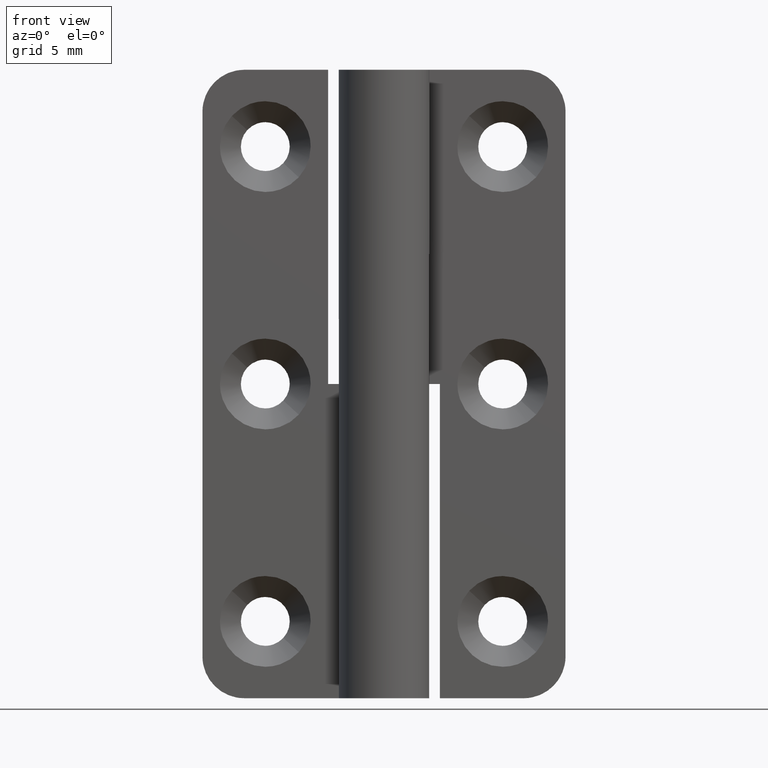
[diagram: clean part render]
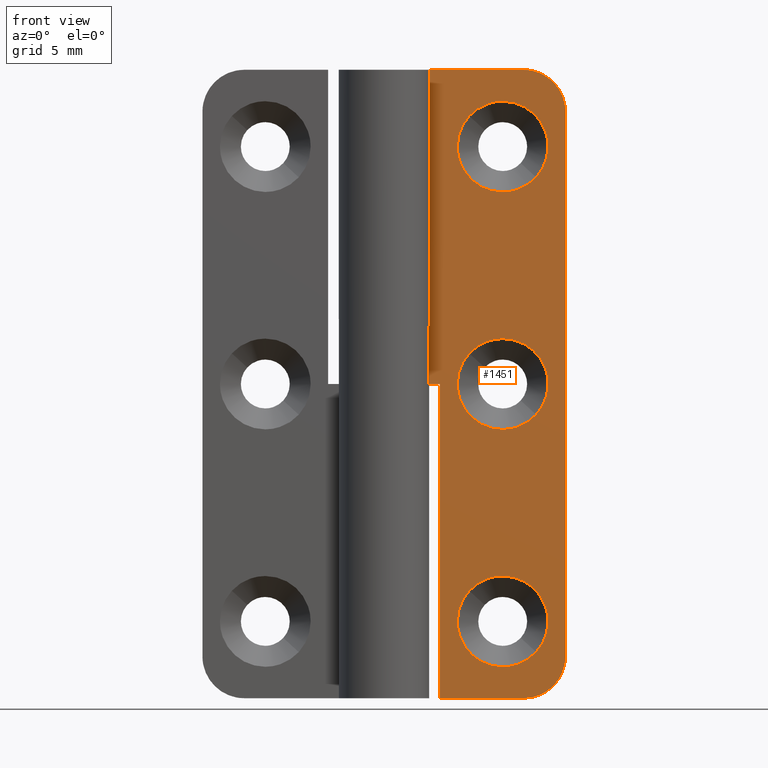
[diagram: same view with one face highlighted and labeled with its STEP entity id]
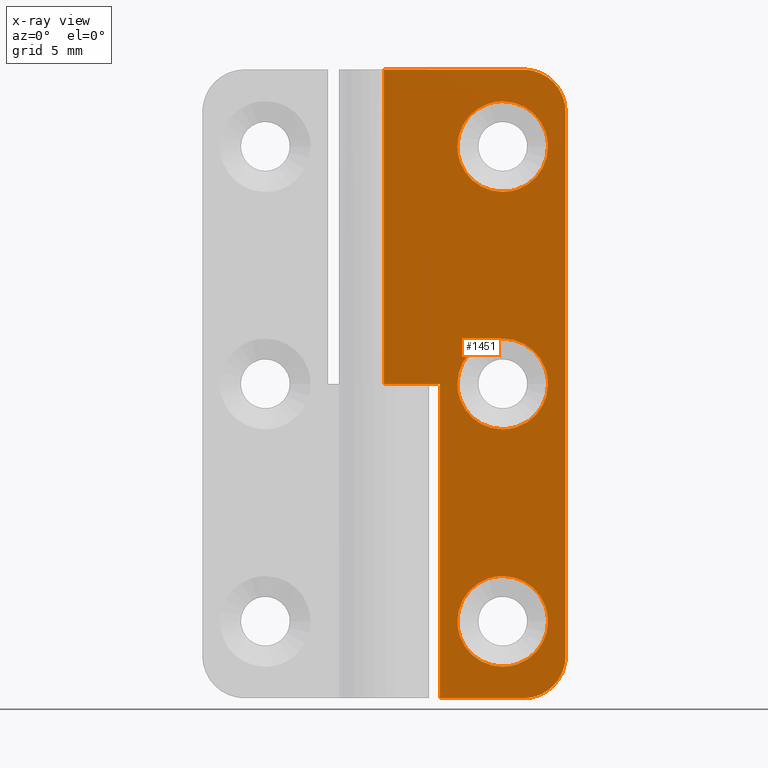
[diagram: x-ray of the same camera — body ghosted, the highlighted face saturated]
A machine part, front view. The second image highlights one B-rep face of the part: STEP entity #1451.
The next image is the same camera in x-ray: the body ghosted, the highlighted face saturated — about 0% of this face is hidden behind the body in this view.
In plain terms, the highlighted face is a freeform B-spline surface patch.
Its self-contained STEP definition (entity closure, byte-faithful):
#383=CARTESIAN_POINT('',(5.250000000000024,1.750000000000000,39.500014390402910));
#384=VERTEX_POINT('',#383);
#385=CARTESIAN_POINT('',(6.103848547643068,1.749999951437242,41.695682272990290));
#386=VERTEX_POINT('',#385);
#387=CARTESIAN_POINT('',(5.250000000000024,1.750000000000000,39.500014390402910));
#388=CARTESIAN_POINT('',(5.249905263666113,1.749999993612510,39.788812092109779));
#389=CARTESIAN_POINT('',(5.314035780303749,1.749999983060951,40.265879624010758));
#390=CARTESIAN_POINT('',(5.593272470421466,1.749999966323279,41.022639770490109));
#391=CARTESIAN_POINT('',(5.883160129097754,1.749999956758604,41.455087896420970));
#392=CARTESIAN_POINT('',(6.103848547643068,1.749999951437242,41.695682272990290));
#393=B_SPLINE_CURVE_WITH_KNOTS('',3,(#387,#388,#389,#390,#391,#392),.UNSPECIFIED.,.F.,.U.,(4,1,1,4),(0.000000011508423,0.866367289098910,1.431377033139097,2.410749185026033),.UNSPECIFIED.);
#394=EDGE_CURVE('',#384,#386,#393,.T.);
#396=CARTESIAN_POINT('',(8.500000000000000,1.750000000000000,36.250013999999950));
#397=VERTEX_POINT('',#396);
#398=CARTESIAN_POINT('',(8.500000000000000,1.750000000000000,36.250013999999950));
#399=CARTESIAN_POINT('',(8.154314993950230,1.750000000000003,36.249802802114502));
#400=CARTESIAN_POINT('',(7.582790762308839,1.749999999999997,36.342130937134158));
#401=CARTESIAN_POINT('',(6.839389454818980,1.750000000000004,36.677147649660938));
#402=CARTESIAN_POINT('',(6.302210389102762,1.749999999999996,37.075540367421432));
#403=CARTESIAN_POINT('',(5.901511765844712,1.750000000000003,37.523192754402793));
#404=CARTESIAN_POINT('',(5.594844033654593,1.749999999999988,38.007472634926863));
#405=CARTESIAN_POINT('',(5.328968361964323,1.750000000000025,38.649233100464173));
#406=CARTESIAN_POINT('',(5.249854812960429,1.749999999999966,39.180930566027151));
#407=CARTESIAN_POINT('',(5.250000000000024,1.750000000000000,39.500014390402910));
#408=B_SPLINE_CURVE_WITH_KNOTS('',3,(#398,#399,#400,#401,#402,#403,#404,#405,#406,#407),.UNSPECIFIED.,.F.,.U.,(4,1,1,1,1,1,1,4),(0.000000048362739,1.036973805816351,1.715003788600368,2.432924922719289,3.031159580038018,3.509768746287797,4.147911748582389,5.105120314384822),.UNSPECIFIED.);
#409=EDGE_CURVE('',#397,#384,#408,.T.);
#411=CARTESIAN_POINT('',(10.896151452356939,1.749999951437239,37.304345727009597));
#412=VERTEX_POINT('',#411);
#413=CARTESIAN_POINT('',(10.896151452356939,1.749999951437239,37.304345727009597));
#414=CARTESIAN_POINT('',(10.725537181967020,1.749999954895075,37.118072944584227));
#415=CARTESIAN_POINT('',(10.351263035142541,1.749999962480485,36.794887488817913));
#416=CARTESIAN_POINT('',(9.776958385236968,1.749999974119905,36.491666757727693));
#417=CARTESIAN_POINT('',(9.159533052241700,1.749999986633253,36.297716479754477));
#418=CARTESIAN_POINT('',(8.752601685066400,1.749999994880526,36.249955528736969));
#419=CARTESIAN_POINT('',(8.500000000000000,1.750000000000000,36.250013999999950));
#420=B_SPLINE_CURVE_WITH_KNOTS('',3,(#413,#414,#415,#416,#417,#418,#419),.UNSPECIFIED.,.F.,.U.,(4,1,1,1,4),(0.000000014684428,0.757792213932789,1.473475589363535,1.936578730684353,2.694370929932206),.UNSPECIFIED.);
#421=EDGE_CURVE('',#412,#397,#420,.T.);
#492=CARTESIAN_POINT('',(8.500000000000000,1.750000000000000,42.750013999999958));
#493=VERTEX_POINT('',#492);
#494=CARTESIAN_POINT('',(6.103848547643068,1.749999951437242,41.695682272990290));
#495=CARTESIAN_POINT('',(6.274460559458166,1.749999954895033,41.881959094806312));
#496=CARTESIAN_POINT('',(6.584592682496578,1.749999961180475,42.149713750348560));
#497=CARTESIAN_POINT('',(7.144714322024778,1.749999972532456,42.473896396690783));
#498=CARTESIAN_POINT('',(7.756266616135769,1.749999984926757,42.692465142899593));
#499=CARTESIAN_POINT('',(8.247399882205157,1.749999994880558,42.750068068936720));
#500=CARTESIAN_POINT('',(8.500000000000000,1.750000000000000,42.750013999999958));
#501=B_SPLINE_CURVE_WITH_KNOTS('',3,(#494,#495,#496,#497,#498,#499,#500),.UNSPECIFIED.,.F.,.U.,(4,1,1,1,4),(0.000000014688920,0.757792213935847,1.220895355267033,1.936578730685173,2.694370929932166),.UNSPECIFIED.);
#502=EDGE_CURVE('',#386,#493,#501,.T.);
#540=CARTESIAN_POINT('',(11.749999999999980,1.750000000000000,39.500013609596962));
#541=VERTEX_POINT('',#540);
#542=CARTESIAN_POINT('',(11.749999999999980,1.750000000000000,39.500013609596962));
#543=CARTESIAN_POINT('',(11.750033103270811,1.749999994723542,39.261449067646048));
#544=CARTESIAN_POINT('',(11.697242185613000,1.749999984171074,38.784340359736547));
#545=CARTESIAN_POINT('',(11.435058978179740,1.749999967256163,38.019567054463401));
#546=CARTESIAN_POINT('',(11.116824862300330,1.749999956758670,37.544943144998648));
#547=CARTESIAN_POINT('',(10.896151452356939,1.749999951437239,37.304345727009597));
#548=B_SPLINE_CURVE_WITH_KNOTS('',3,(#542,#543,#544,#545,#546,#547),.UNSPECIFIED.,.F.,.U.,(4,1,1,4),(0.000000011508615,0.715692780236679,1.431377033139402,2.410749185025999),.UNSPECIFIED.);
#549=EDGE_CURVE('',#541,#412,#548,.T.);
#551=CARTESIAN_POINT('',(8.500000000000000,1.750000000000000,42.750013999999958));
#552=CARTESIAN_POINT('',(8.765894396079290,1.750000000000000,42.750077312279480));
#553=CARTESIAN_POINT('',(9.284355081210899,1.750000000000004,42.686038327872538));
#554=CARTESIAN_POINT('',(9.897711352233992,1.749999999999998,42.453761234738543));
#555=CARTESIAN_POINT('',(10.411806302017480,1.750000000000002,42.145587399117687));
#556=CARTESIAN_POINT('',(10.790004994778460,1.750000000000000,41.827373326174182));
#557=CARTESIAN_POINT('',(11.127000597385940,1.749999999999999,41.431787064065503));
#558=CARTESIAN_POINT('',(11.405158276054930,1.750000000000007,40.992558442646782));
#559=CARTESIAN_POINT('',(11.671038272380720,1.750000000000004,40.350794606531487));
#560=CARTESIAN_POINT('',(11.750137504108620,1.749999999999989,39.819097082843420));
#561=CARTESIAN_POINT('',(11.749999999999980,1.750000000000000,39.500013609596962));
#562=B_SPLINE_CURVE_WITH_KNOTS('',3,(#551,#552,#553,#554,#555,#556,#557,#558,#559,#560,#561),.UNSPECIFIED.,.F.,.U.,(4,1,1,1,1,1,1,1,4),(0.000000048371061,0.797673212210031,1.555468238086133,1.954315122686869,2.592429593743864,3.031159580040696,3.509768746289165,4.147911748582479,5.105120314384816),.UNSPECIFIED.);
#563=EDGE_CURVE('',#493,#541,#562,.T.);
#586=CARTESIAN_POINT('',(5.250000000000025,1.750000000000000,22.500007390402960));
#587=VERTEX_POINT('',#586);
#588=CARTESIAN_POINT('',(6.103848547643072,1.749999951437243,24.695675272990339));
#589=VERTEX_POINT('',#588);
#590=CARTESIAN_POINT('',(5.250000000000025,1.750000000000000,22.500007390402960));
#591=CARTESIAN_POINT('',(5.249794501681098,1.749999992223433,22.851609683235090));
#592=CARTESIAN_POINT('',(5.328182860309387,1.749999981673853,23.328587171541891));
#593=CARTESIAN_POINT('',(5.628636290391573,1.749999965156872,24.075369983172131));
#594=CARTESIAN_POINT('',(5.883153250300435,1.749999956758517,24.455084399151630));
#595=CARTESIAN_POINT('',(6.103848547643072,1.749999951437243,24.695675272990339));
#596=B_SPLINE_CURVE_WITH_KNOTS('',3,(#590,#591,#592,#593,#594,#595),.UNSPECIFIED.,.F.,.U.,(4,1,1,4),(0.000000011505886,1.054705839757154,1.431377033138864,2.410749185026023),.UNSPECIFIED.);
#597=EDGE_CURVE('',#587,#589,#596,.T.);
#599=CARTESIAN_POINT('',(8.500000000000000,1.750000000000000,19.250007000000000));
#600=VERTEX_POINT('',#599);
#601=CARTESIAN_POINT('',(8.500000000000000,1.750000000000000,19.250007000000000));
#602=CARTESIAN_POINT('',(8.287288740189421,1.750000000000001,19.249988559959050));
#603=CARTESIAN_POINT('',(7.835276272184781,1.749999999999998,19.294514636219649));
#604=CARTESIAN_POINT('',(7.210464059604127,1.750000000000003,19.492446936790820));
#605=CARTESIAN_POINT('',(6.685925014510925,1.749999999999995,19.785396309692871));
#606=CARTESIAN_POINT('',(6.227977795016376,1.750000000000001,20.151900008953270));
#607=CARTESIAN_POINT('',(5.885067283388882,1.750000000000001,20.544533935283621));
#608=CARTESIAN_POINT('',(5.584615141647876,1.749999999999998,21.032145409243579));
#609=CARTESIAN_POINT('',(5.328976896565504,1.750000000000000,21.649229891063140));
#610=CARTESIAN_POINT('',(5.249850708876859,1.750000000000003,22.180921852404921));
#611=CARTESIAN_POINT('',(5.250000000000025,1.750000000000000,22.500007390402960));
#612=B_SPLINE_CURVE_WITH_KNOTS('',3,(#601,#602,#603,#604,#605,#606,#607,#608,#609,#610,#611),.UNSPECIFIED.,.F.,.U.,(4,1,1,1,1,1,1,1,4),(0.000000048368444,0.638137660557733,1.356049108615419,1.954315122685200,2.432924922722224,3.110921112327103,3.509768746288751,4.147911748582246,5.105120314384839),.UNSPECIFIED.);
#613=EDGE_CURVE('',#600,#587,#612,.T.);
#615=CARTESIAN_POINT('',(10.896151452356939,1.749999951437237,20.304338727009650));
#616=VERTEX_POINT('',#615);
#617=CARTESIAN_POINT('',(10.896151452356939,1.749999951437237,20.304338727009650));
#618=CARTESIAN_POINT('',(10.725540651817630,1.749999954895005,20.118057917786150));
#619=CARTESIAN_POINT('',(10.436794385137530,1.749999960747019,19.868781143102421));
#620=CARTESIAN_POINT('',(9.941748155985458,1.749999970780114,19.573664843124462));
#621=CARTESIAN_POINT('',(9.341911979944436,1.749999982936985,19.328010202026249));
#622=CARTESIAN_POINT('',(8.822779340415872,1.749999993458238,19.249864965780919));
#623=CARTESIAN_POINT('',(8.500000000000000,1.750000000000000,19.250007000000000));
#624=B_SPLINE_CURVE_WITH_KNOTS('',3,(#617,#618,#619,#620,#621,#622,#623),.UNSPECIFIED.,.F.,.U.,(4,1,1,1,4),(0.000000014685558,0.757792213933224,1.136690110805183,1.726080500663979,2.694370929932196),.UNSPECIFIED.);
#625=EDGE_CURVE('',#616,#600,#624,.T.);
#696=CARTESIAN_POINT('',(8.500000000000000,1.750000000000000,25.750007000000000));
#697=VERTEX_POINT('',#696);
#698=CARTESIAN_POINT('',(6.103848547643072,1.749999951437243,24.695675272990339));
#699=CARTESIAN_POINT('',(6.274459108041489,1.749999954895005,24.881955409169290));
#700=CARTESIAN_POINT('',(6.563205146995663,1.749999960747012,25.131234386860449));
#701=CARTESIAN_POINT('',(7.058252869797977,1.749999970780141,25.426346636519352));
#702=CARTESIAN_POINT('',(7.658086388711195,1.749999982936942,25.672007471919791));
#703=CARTESIAN_POINT('',(8.177221253750471,1.749999993458253,25.750147674255839));
#704=CARTESIAN_POINT('',(8.500000000000000,1.750000000000000,25.750007000000000));
#705=B_SPLINE_CURVE_WITH_KNOTS('',3,(#698,#699,#700,#701,#702,#703,#704),.UNSPECIFIED.,.F.,.U.,(4,1,1,1,4),(0.000000014686188,0.757792213933682,1.136690110805521,1.726080500664157,2.694370929932189),.UNSPECIFIED.);
#706=EDGE_CURVE('',#589,#697,#705,.T.);
#745=CARTESIAN_POINT('',(11.749999999999980,1.750000000000000,22.500006609597001));
#746=VERTEX_POINT('',#745);
#747=CARTESIAN_POINT('',(11.749999999999980,1.750000000000000,22.500006609597001));
#748=CARTESIAN_POINT('',(11.750022005110489,1.749999994723641,22.261446586152420));
#749=CARTESIAN_POINT('',(11.693140407737641,1.749999983337431,21.746641428092879));
#750=CARTESIAN_POINT('',(11.417053159735490,1.749999966492202,20.985020216165921));
#751=CARTESIAN_POINT('',(11.091330134671450,1.749999956145148,20.517196809618572));
#752=CARTESIAN_POINT('',(10.896151452356939,1.749999951437237,20.304338727009650));
#753=B_SPLINE_CURVE_WITH_KNOTS('',3,(#747,#748,#749,#750,#751,#752),.UNSPECIFIED.,.F.,.U.,(4,1,1,4),(0.000000011505733,0.715692780235343,1.544381907424792,2.410749185025989),.UNSPECIFIED.);
#754=EDGE_CURVE('',#746,#616,#753,.T.);
#756=CARTESIAN_POINT('',(8.500000000000000,1.750000000000000,25.750007000000000));
#757=CARTESIAN_POINT('',(8.712713438656845,1.749999999999997,25.750035501218228));
#758=CARTESIAN_POINT('',(9.084947374917867,1.750000000000010,25.713324766477609));
#759=CARTESIAN_POINT('',(9.586008106476220,1.749999999999990,25.574660179935218));
#760=CARTESIAN_POINT('',(10.037956930616970,1.750000000000007,25.377642043071940));
#761=CARTESIAN_POINT('',(10.432526932497399,1.749999999999995,25.127779474592380));
#762=CARTESIAN_POINT('',(10.825866559139831,1.750000000000006,24.788480406790480));
#763=CARTESIAN_POINT('',(11.163546419305151,1.749999999999999,24.392148229880078));
#764=CARTESIAN_POINT('',(11.439005908516560,1.750000000000000,23.919471322619930));
#765=CARTESIAN_POINT('',(11.678922724685981,1.749999999999998,23.297604819409688));
#766=CARTESIAN_POINT('',(11.750152379400300,1.750000000000001,22.819095270116929));
#767=CARTESIAN_POINT('',(11.749999999999980,1.750000000000000,22.500006609597001));
#768=B_SPLINE_CURVE_WITH_KNOTS('',3,(#756,#757,#758,#759,#760,#761,#762,#763,#764,#765,#766,#767),.UNSPECIFIED.,.F.,.U.,(4,1,1,1,1,1,1,1,1,4),(0.000000048364843,0.638137660554750,1.116744200774647,1.555468238082089,2.113852417583560,2.512690467800751,3.110921112326673,3.669304834590391,4.147911748582351,5.105120314384865),.UNSPECIFIED.);
#769=EDGE_CURVE('',#697,#746,#768,.T.);
#792=CARTESIAN_POINT('',(5.250000000000024,1.750000000000000,5.500000390402959));
#793=VERTEX_POINT('',#792);
#794=CARTESIAN_POINT('',(6.103848547643072,1.749999951437244,7.695668272990342));
#795=VERTEX_POINT('',#794);
#796=CARTESIAN_POINT('',(5.250000000000024,1.750000000000000,5.500000390402959));
#797=CARTESIAN_POINT('',(5.249987843241259,1.749999996112112,5.675783554459459));
#798=CARTESIAN_POINT('',(5.279609109245870,1.749999988058641,6.039905109088721));
#799=CARTESIAN_POINT('',(5.397719604898684,1.749999977793235,6.504034832721891));
#800=CARTESIAN_POINT('',(5.635693995382362,1.749999964923465,7.085915623063779));
#801=CARTESIAN_POINT('',(5.883155592235312,1.749999956758574,7.455075237702156));
#802=CARTESIAN_POINT('',(6.103848547643072,1.749999951437244,7.695668272990342));
#803=B_SPLINE_CURVE_WITH_KNOTS('',3,(#796,#797,#798,#799,#800,#801,#802),.UNSPECIFIED.,.F.,.U.,(4,1,1,1,4),(0.000000011506514,0.527351144336262,1.092375014252724,1.431377033139071,2.410749185026028),.UNSPECIFIED.);
#804=EDGE_CURVE('',#793,#795,#803,.T.);
#806=CARTESIAN_POINT('',(8.500000000000000,1.750000000000000,2.250000000000000));
#807=VERTEX_POINT('',#806);
#808=CARTESIAN_POINT('',(8.500000000000000,1.750000000000000,2.250000000000000));
#809=CARTESIAN_POINT('',(8.180908962842365,1.749999999999997,2.249844567684519));
#810=CARTESIAN_POINT('',(7.689116331211935,1.750000000000002,2.323066727933450));
#811=CARTESIAN_POINT('',(7.006348256103308,1.749999999999998,2.591250561371122));
#812=CARTESIAN_POINT('',(6.543044924835734,1.750000000000003,2.884643294229591));
#813=CARTESIAN_POINT('',(6.098929988348662,1.749999999999998,3.287169112393762));
#814=CARTESIAN_POINT('',(5.767402481361777,1.750000000000002,3.706644459377383));
#815=CARTESIAN_POINT('',(5.462857392617767,1.750000000000000,4.284878841088996));
#816=CARTESIAN_POINT('',(5.287745783841111,1.750000000000001,4.875152425456276));
#817=CARTESIAN_POINT('',(5.249992948967325,1.750000000000001,5.313883282547389));
#818=CARTESIAN_POINT('',(5.250000000000024,1.750000000000000,5.500000390402959));
#819=B_SPLINE_CURVE_WITH_KNOTS('',3,(#808,#809,#810,#811,#812,#813,#814,#815,#816,#817,#818),.UNSPECIFIED.,.F.,.U.,(4,1,1,1,1,1,1,1,4),(0.000000048361324,0.957208612516665,1.475702230180258,2.193612469710593,2.592429593740317,3.270458510172665,3.788956071172330,4.546759382394512,5.105120314384838),.UNSPECIFIED.);
#820=EDGE_CURVE('',#807,#793,#819,.T.);
#822=CARTESIAN_POINT('',(10.896151452356939,1.749999951437237,3.304331727009647));
#823=VERTEX_POINT('',#822);
#824=CARTESIAN_POINT('',(10.896151452356939,1.749999951437237,3.304331727009647));
#825=CARTESIAN_POINT('',(10.725537188754460,1.749999954895081,3.118058960731851));
#826=CARTESIAN_POINT('',(10.351263012375311,1.749999962480470,2.794873451623417));
#827=CARTESIAN_POINT('',(9.776958429832122,1.749999974119903,2.491652799641979));
#828=CARTESIAN_POINT('',(9.159532938367825,1.749999986633265,2.297702380284478));
#829=CARTESIAN_POINT('',(8.752601782911135,1.749999994880525,2.249941651319579));
#830=CARTESIAN_POINT('',(8.500000000000000,1.750000000000000,2.250000000000000));
#831=B_SPLINE_CURVE_WITH_KNOTS('',3,(#824,#825,#826,#827,#828,#829,#830),.UNSPECIFIED.,.F.,.U.,(4,1,1,1,4),(0.000000014683742,0.757792213932153,1.473475589363102,1.936578730684163,2.694370929932187),.UNSPECIFIED.);
#832=EDGE_CURVE('',#823,#807,#831,.T.);
#904=CARTESIAN_POINT('',(8.500000000000000,1.750000000000000,8.749999999999998));
#905=VERTEX_POINT('',#904);
#906=CARTESIAN_POINT('',(6.103848547643072,1.749999951437244,7.695668272990342));
#907=CARTESIAN_POINT('',(6.321811098757067,1.749999955854685,7.933740830298796));
#908=CARTESIAN_POINT('',(6.730144496920529,1.749999964130375,8.263696278839754));
#909=CARTESIAN_POINT('',(7.316506240668014,1.749999976014152,8.539973852013851));
#910=CARTESIAN_POINT('',(7.868535479941098,1.749999987202132,8.705586359042290));
#911=CARTESIAN_POINT('',(8.247396788636571,1.749999994880495,8.750061836862420));
#912=CARTESIAN_POINT('',(8.500000000000000,1.750000000000000,8.749999999999998));
#913=B_SPLINE_CURVE_WITH_KNOTS('',3,(#906,#907,#908,#909,#910,#911,#912),.UNSPECIFIED.,.F.,.U.,(4,1,1,1,4),(0.000000014685129,0.968290443960880,1.557680833804508,1.936578730684285,2.694370929932181),.UNSPECIFIED.);
#914=EDGE_CURVE('',#795,#905,#913,.T.);
#953=CARTESIAN_POINT('',(11.749999999999980,1.750000000000000,5.499999609596998));
#954=VERTEX_POINT('',#953);
#955=CARTESIAN_POINT('',(11.749999999999980,1.750000000000000,5.499999609596998));
#956=CARTESIAN_POINT('',(11.750030780842881,1.749999994723583,5.261437171095685));
#957=CARTESIAN_POINT('',(11.693118496012080,1.749999983337616,4.746642980756337));
#958=CARTESIAN_POINT('',(11.417073134804051,1.749999966491980,3.985001707118045));
#959=CARTESIAN_POINT('',(11.091319285232810,1.749999956145303,3.517197328953187));
#960=CARTESIAN_POINT('',(10.896151452356939,1.749999951437237,3.304331727009647));
#961=B_SPLINE_CURVE_WITH_KNOTS('',3,(#955,#956,#957,#958,#959,#960),.UNSPECIFIED.,.F.,.U.,(4,1,1,4),(0.000000011505346,0.715692780234981,1.544381907424435,2.410749185025992),.UNSPECIFIED.);
#962=EDGE_CURVE('',#954,#823,#961,.T.);
#964=CARTESIAN_POINT('',(8.500000000000000,1.750000000000000,8.749999999999998));
#965=CARTESIAN_POINT('',(8.792489010081226,1.750000000000000,8.750095032844069));
#966=CARTESIAN_POINT('',(9.244443833407866,1.750000000000001,8.688555257144321));
#967=CARTESIAN_POINT('',(9.859460774269246,1.750000000000002,8.468467072641882));
#968=CARTESIAN_POINT('',(10.384019055484741,1.749999999999998,8.175581204430626));
#969=CARTESIAN_POINT('',(10.930995897378230,1.750000000000002,7.703838488766786));
#970=CARTESIAN_POINT('',(11.328052863417311,1.749999999999999,7.147307752521391));
#971=CARTESIAN_POINT('',(11.581905113811199,1.750000000000000,6.574476172302459));
#972=CARTESIAN_POINT('',(11.717939852157601,1.749999999999999,6.058361835955221));
#973=CARTESIAN_POINT('',(11.750015441946539,1.750000000000000,5.686119490742186));
#974=CARTESIAN_POINT('',(11.749999999999980,1.750000000000000,5.499999609596998));
#975=B_SPLINE_CURVE_WITH_KNOTS('',3,(#964,#965,#966,#967,#968,#969,#970,#971,#972,#973,#974),.UNSPECIFIED.,.F.,.U.,(4,1,1,1,1,1,1,1,4),(0.000000048365425,0.877436096852230,1.356049108613100,1.954315122683337,2.672195628227038,3.509768746288052,3.988375660203537,4.546759382394601,5.105120314384867),.UNSPECIFIED.);
#976=EDGE_CURVE('',#905,#954,#975,.T.);
#995=CARTESIAN_POINT('',(13.0,1.750000000000000,42.000006999999947));
#996=VERTEX_POINT('',#995);
#997=CARTESIAN_POINT('',(10.0,1.750000000000000,45.000006999999997));
#998=VERTEX_POINT('',#997);
#999=CARTESIAN_POINT('',(13.0,1.750000000000000,42.000006999999947));
#1000=CARTESIAN_POINT('',(13.000014709469530,1.750000000000001,42.171813228515227));
#1001=CARTESIAN_POINT('',(12.970402278052070,1.749999999999998,42.515420549869958));
#1002=CARTESIAN_POINT('',(12.854258571485030,1.750000000000000,42.956107133107757));
#1003=CARTESIAN_POINT('',(12.668110556774231,1.749999999999996,43.397826223319584));
#1004=CARTESIAN_POINT('',(12.441704363018610,1.750000000000009,43.765255707058657));
#1005=CARTESIAN_POINT('',(12.064282544275210,1.749999999999987,44.202859382286690));
#1006=CARTESIAN_POINT('',(11.637142445603930,1.750000000000018,44.540435822176661));
#1007=CARTESIAN_POINT('',(11.085595815261749,1.749999999999992,44.813776628737841));
#1008=CARTESIAN_POINT('',(10.564500430804459,1.750000000000014,44.964892835822702));
#1009=CARTESIAN_POINT('',(10.184076950661940,1.749999999999992,45.000024675241683));
#1010=CARTESIAN_POINT('',(10.0,1.750000000000000,45.000006999999997));
#1011=B_SPLINE_CURVE_WITH_KNOTS('',3,(#999,#1000,#1001,#1002,#1003,#1004,#1005,#1006,#1007,#1008,#1009,#1010),.UNSPECIFIED.,.F.,.U.,(4,1,1,1,1,1,1,1,1,4),(0.000000052658003,0.515419335929696,1.030841144699601,1.362187090226655,1.951238598724356,2.319409008455265,3.092516431286780,3.571130160778184,4.160186568426679,4.712418548627737),.UNSPECIFIED.);
#1012=EDGE_CURVE('',#996,#998,#1011,.T.);
#1059=CARTESIAN_POINT('',(10.0,1.750000000000000,0.0));
#1060=VERTEX_POINT('',#1059);
#1061=CARTESIAN_POINT('',(13.0,1.750000000000000,3.0));
#1062=VERTEX_POINT('',#1061);
#1063=CARTESIAN_POINT('',(10.0,1.750000000000000,0.0));
#1064=CARTESIAN_POINT('',(10.220896117480221,1.750000000000003,-0.000041261542508));
#1065=CARTESIAN_POINT('',(10.625843921624190,1.749999999999997,0.044941659512077));
#1066=CARTESIAN_POINT('',(11.247321202070619,1.750000000000003,0.245973538519835));
#1067=CARTESIAN_POINT('',(11.728028394088270,1.750000000000000,0.526143373461145));
#1068=CARTESIAN_POINT('',(12.156268590696000,1.749999999999999,0.895592650991085));
#1069=CARTESIAN_POINT('',(12.442072508469810,1.749999999999983,1.235256786964676));
#1070=CARTESIAN_POINT('',(12.701222870136750,1.750000000000027,1.667636505433271));
#1071=CARTESIAN_POINT('',(12.928920790204950,1.749999999999996,2.226940634111106));
#1072=CARTESIAN_POINT('',(13.000140951254689,1.749999999999993,2.705459552267121));
#1073=CARTESIAN_POINT('',(13.0,1.750000000000000,3.0));
#1074=B_SPLINE_CURVE_WITH_KNOTS('',3,(#1063,#1064,#1065,#1066,#1067,#1068,#1069,#1070,#1071,#1072,#1073),.UNSPECIFIED.,.F.,.U.,(4,1,1,1,1,1,1,1,4),(0.000000052659678,0.662680778923604,1.214921136868308,1.951238598724188,2.319409008455291,2.908441279411876,3.276602927485841,3.828844836192351,4.712418548627704),.UNSPECIFIED.);
#1075=EDGE_CURVE('',#1060,#1062,#1074,.T.);
#1122=CARTESIAN_POINT('',(3.999999999999901,1.750000000000030,0.0));
#1123=VERTEX_POINT('',#1122);
#1129=CARTESIAN_POINT('',(3.999999999999901,1.750000000000030,22.500007000000000));
#1130=VERTEX_POINT('',#1129);
#1131=CARTESIAN_POINT('',(3.999999999999901,1.750000000000030,0.0));
#1132=CARTESIAN_POINT('',(3.999999999999901,1.750000000000030,22.500007000000000));
#1133=QUASI_UNIFORM_CURVE('',1,(#1131,#1132),.UNSPECIFIED.,.F.,.U.);
#1134=EDGE_CURVE('',#1123,#1130,#1133,.T.);
#1157=CARTESIAN_POINT('',(-3.214622E-016,1.750000000000000,22.500007000000000));
#1158=VERTEX_POINT('',#1157);
#1159=CARTESIAN_POINT('',(3.999999999999901,1.750000000000030,22.500007000000000));
#1160=CARTESIAN_POINT('',(-3.214622E-016,1.750000000000000,22.500007000000000));
#1161=QUASI_UNIFORM_CURVE('',1,(#1159,#1160),.UNSPECIFIED.,.F.,.U.);
#1162=EDGE_CURVE('',#1130,#1158,#1161,.T.);
#1260=CARTESIAN_POINT('',(-3.214592E-016,1.750000000000000,45.000006999999997));
#1261=VERTEX_POINT('',#1260);
#1262=CARTESIAN_POINT('',(-3.214592E-016,1.750000000000000,45.000006999999997));
#1263=CARTESIAN_POINT('',(10.0,1.750000000000000,45.000006999999997));
#1264=QUASI_UNIFORM_CURVE('',1,(#1262,#1263),.UNSPECIFIED.,.F.,.U.);
#1265=EDGE_CURVE('',#1261,#998,#1264,.T.);
#1373=CARTESIAN_POINT('',(13.0,1.750000000000000,42.000006999999947));
#1374=CARTESIAN_POINT('',(13.0,1.750000000000000,3.0));
#1375=QUASI_UNIFORM_CURVE('',1,(#1373,#1374),.UNSPECIFIED.,.F.,.U.);
#1376=EDGE_CURVE('',#996,#1062,#1375,.T.);
#1399=CARTESIAN_POINT('',(3.999999999999901,1.750000000000030,0.0));
#1400=CARTESIAN_POINT('',(10.0,1.750000000000000,0.0));
#1401=QUASI_UNIFORM_CURVE('',1,(#1399,#1400),.UNSPECIFIED.,.F.,.U.);
#1402=EDGE_CURVE('',#1123,#1060,#1401,.T.);
#1408=CARTESIAN_POINT('',(-0.649349974803477,1.750000000000000,-2.247750262431256));
#1409=CARTESIAN_POINT('',(-0.649349974803477,1.750000000000000,47.247758469425499));
#1410=CARTESIAN_POINT('',(13.649350323490649,1.750000000000000,-2.247750262431256));
#1411=CARTESIAN_POINT('',(13.649350323490649,1.750000000000000,47.247758469425499));
#1412=B_SPLINE_SURFACE_WITH_KNOTS('',1,1,((#1408,#1410),(#1409,#1411)),.UNSPECIFIED.,.F.,.F.,.U.,(2,2),(2,2),(0.0,49.495508731856752),(0.0,14.298700298294129),.UNSPECIFIED.);
#1413=ORIENTED_EDGE('',*,*,#1402,.T.);
#1414=ORIENTED_EDGE('',*,*,#1075,.T.);
#1415=ORIENTED_EDGE('',*,*,#1376,.F.);
#1416=ORIENTED_EDGE('',*,*,#1012,.T.);
#1417=ORIENTED_EDGE('',*,*,#1265,.F.);
#1418=CARTESIAN_POINT('',(-3.214592E-016,1.750000000000000,45.000006999999997));
#1419=CARTESIAN_POINT('',(-3.214622E-016,1.750000000000000,22.500007000000000));
#1420=QUASI_UNIFORM_CURVE('',1,(#1418,#1419),.UNSPECIFIED.,.F.,.U.);
#1421=EDGE_CURVE('',#1261,#1158,#1420,.T.);
#1422=ORIENTED_EDGE('',*,*,#1421,.T.);
#1423=ORIENTED_EDGE('',*,*,#1162,.F.);
#1424=ORIENTED_EDGE('',*,*,#1134,.F.);
#1425=EDGE_LOOP('',(#1413,#1414,#1415,#1416,#1417,#1422,#1423,#1424));
#1426=FACE_OUTER_BOUND('',#1425,.T.);
#1427=ORIENTED_EDGE('',*,*,#769,.T.);
#1428=ORIENTED_EDGE('',*,*,#754,.T.);
#1429=ORIENTED_EDGE('',*,*,#625,.T.);
#1430=ORIENTED_EDGE('',*,*,#613,.T.);
#1431=ORIENTED_EDGE('',*,*,#597,.T.);
#1432=ORIENTED_EDGE('',*,*,#706,.T.);
#1433=EDGE_LOOP('',(#1427,#1428,#1429,#1430,#1431,#1432));
#1434=FACE_BOUND('',#1433,.T.);
#1435=ORIENTED_EDGE('',*,*,#976,.T.);
#1436=ORIENTED_EDGE('',*,*,#962,.T.);
#1437=ORIENTED_EDGE('',*,*,#832,.T.);
#1438=ORIENTED_EDGE('',*,*,#820,.T.);
#1439=ORIENTED_EDGE('',*,*,#804,.T.);
#1440=ORIENTED_EDGE('',*,*,#914,.T.);
#1441=EDGE_LOOP('',(#1435,#1436,#1437,#1438,#1439,#1440));
#1442=FACE_BOUND('',#1441,.T.);
#1443=ORIENTED_EDGE('',*,*,#563,.T.);
#1444=ORIENTED_EDGE('',*,*,#549,.T.);
#1445=ORIENTED_EDGE('',*,*,#421,.T.);
#1446=ORIENTED_EDGE('',*,*,#409,.T.);
#1447=ORIENTED_EDGE('',*,*,#394,.T.);
#1448=ORIENTED_EDGE('',*,*,#502,.T.);
#1449=EDGE_LOOP('',(#1443,#1444,#1445,#1446,#1447,#1448));
#1450=FACE_BOUND('',#1449,.T.);
#1451=ADVANCED_FACE('',(#1426,#1434,#1442,#1450),#1412,.F.);